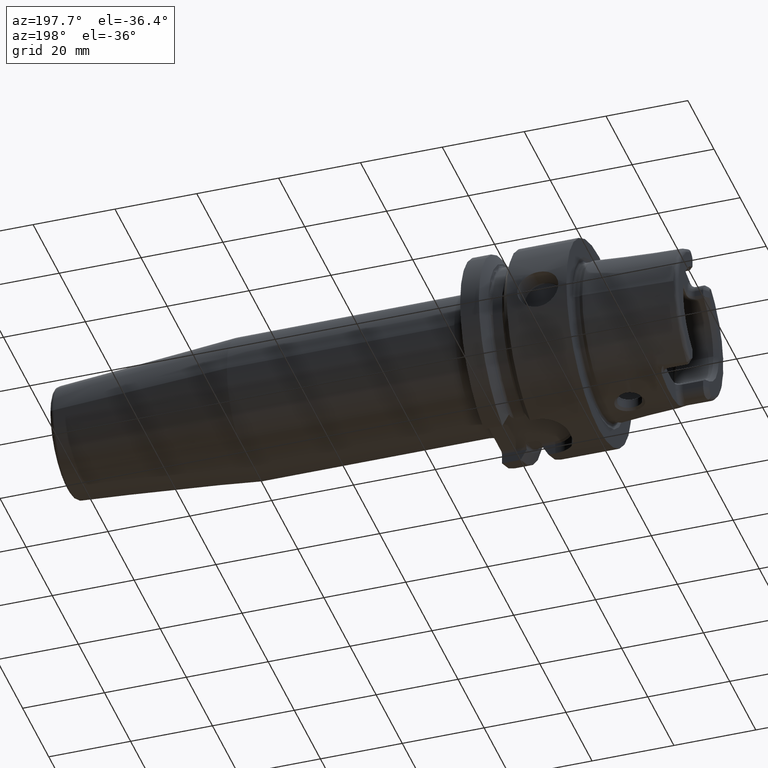
[diagram: clean part render]
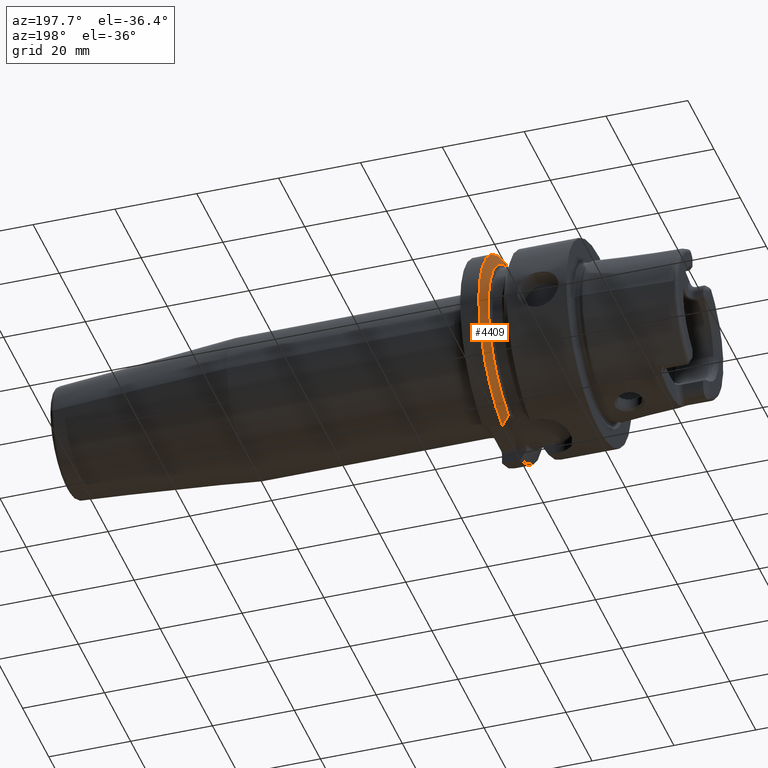
[diagram: same view with one face highlighted and labeled with its STEP entity id]
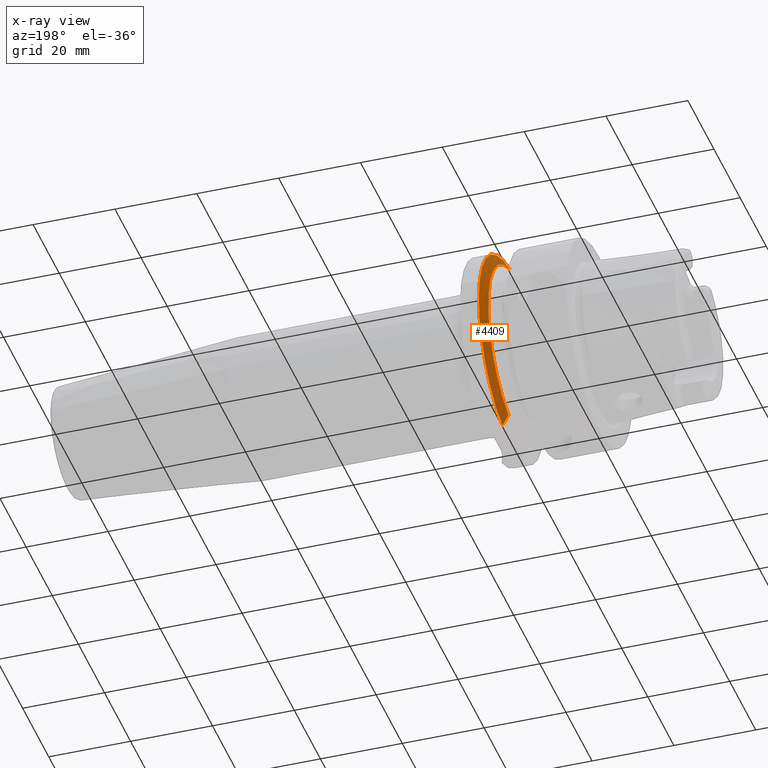
[diagram: x-ray of the same camera — body ghosted, the highlighted face saturated]
A machine part, auxiliary view. The second image highlights one B-rep face of the part: STEP entity #4409.
The next image is the same camera in x-ray: the body ghosted, the highlighted face saturated — about 0% of this face is hidden behind the body in this view.
In plain terms, the highlighted conical surface has half-angle 60 deg.
Its self-contained STEP definition (entity closure, byte-faithful):
#1037=CARTESIAN_POINT('',(2.139193283149E1,0.E0,0.E0));
#1038=DIRECTION('',(-1.E0,0.E0,0.E0));
#1039=DIRECTION('',(0.E0,2.407E-1,9.705995621264E-1));
#1040=AXIS2_PLACEMENT_3D('',#1037,#1038,#1039);
#1148=CARTESIAN_POINT('',(1.99125E1,0.E0,0.E0));
#1149=DIRECTION('',(-1.E0,0.E0,0.E0));
#1150=DIRECTION('',(0.E0,2.681888512389E-1,9.633663581790E-1));
#1151=AXIS2_PLACEMENT_3D('',#1148,#1149,#1150);
#1686=CARTESIAN_POINT('',(1.99125E1,6.0175E0,2.161557810313E1));
#1687=CARTESIAN_POINT('',(2.006894208185E1,6.0175E0,2.189684766575E1));
#1688=CARTESIAN_POINT('',(2.038712265933E1,6.0175E0,2.246811923109E1));
#1689=CARTESIAN_POINT('',(2.088008533564E1,6.0175E0,2.335091062741E1));
#1690=CARTESIAN_POINT('',(2.121953726577E1,6.0175E0,2.395734634398E1));
#1691=CARTESIAN_POINT('',(2.139193283149E1,6.0175E0,2.426498905316E1));
#1835=CARTESIAN_POINT('',(2.139193283149E1,7.0175E0,-2.399488890889E1));
#1836=CARTESIAN_POINT('',(2.121882969967E1,7.0175E0,-2.368250632149E1));
#1837=CARTESIAN_POINT('',(2.087843478851E1,7.0175E0,-2.306726652731E1));
#1838=CARTESIAN_POINT('',(2.038551824017E1,7.0175E0,-2.217337894395E1));
#1839=CARTESIAN_POINT('',(2.006825483737E1,7.0175E0,-2.159595049916E1));
#1840=CARTESIAN_POINT('',(1.99125E1,7.0175E0,-2.131192663117E1));
#2982=CARTESIAN_POINT('',(1.99125E1,6.0175E0,2.161557810313E1));
#2983=VERTEX_POINT('',#2982);
#2984=VERTEX_POINT('',#1691);
#2991=CARTESIAN_POINT('',(1.99125E1,7.0175E0,-2.131192663117E1));
#2993=VERTEX_POINT('',#2991);
#2994=VERTEX_POINT('',#1835);
#4395=CARTESIAN_POINT('',(2.065221641574E1,0.E0,0.E0));
#4396=DIRECTION('',(1.E0,0.E0,0.E0));
#4397=DIRECTION('',(0.E0,-1.E0,0.E0));
#4398=AXIS2_PLACEMENT_3D('',#4395,#4396,#4397);
#4399=CONICAL_SURFACE('',#4398,2.371877358474E1,6.E1);
#4401=ORIENTED_EDGE('',*,*,#4400,.T.);
#4403=ORIENTED_EDGE('',*,*,#4402,.F.);
#4404=ORIENTED_EDGE('',*,*,#4356,.F.);
#4406=ORIENTED_EDGE('',*,*,#4405,.F.);
#4407=EDGE_LOOP('',(#4401,#4403,#4404,#4406));
#4408=FACE_OUTER_BOUND('',#4407,.F.);
#4409=ADVANCED_FACE('',(#4408),#4399,.T.);
#1041=CIRCLE('',#1040,2.5E1);
#1152=CIRCLE('',#1151,2.243754716948E1);
#1692=B_SPLINE_CURVE_WITH_KNOTS('',3,(#1686,#1687,#1688,#1689,#1690,#1691),
.UNSPECIFIED.,.F.,.F.,(4,1,1,4),(0.E0,3.333333333333E-1,6.666666666667E-1,1.E0),
.UNSPECIFIED.);
#1841=B_SPLINE_CURVE_WITH_KNOTS('',3,(#1835,#1836,#1837,#1838,#1839,#1840),
.UNSPECIFIED.,.F.,.F.,(4,1,1,4),(0.E0,3.333333333333E-1,6.666666666667E-1,1.E0),
.UNSPECIFIED.);
#4356=EDGE_CURVE('',#2984,#2994,#1041,.T.);
#4400=EDGE_CURVE('',#2983,#2993,#1152,.T.);
#4402=EDGE_CURVE('',#2994,#2993,#1841,.T.);
#4405=EDGE_CURVE('',#2983,#2984,#1692,.T.);